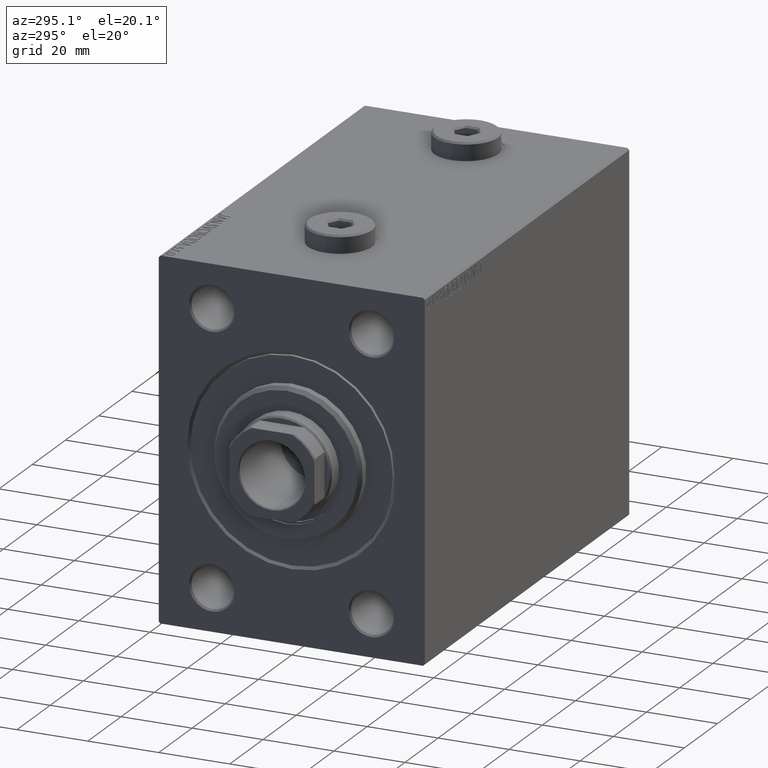
[diagram: clean part render]
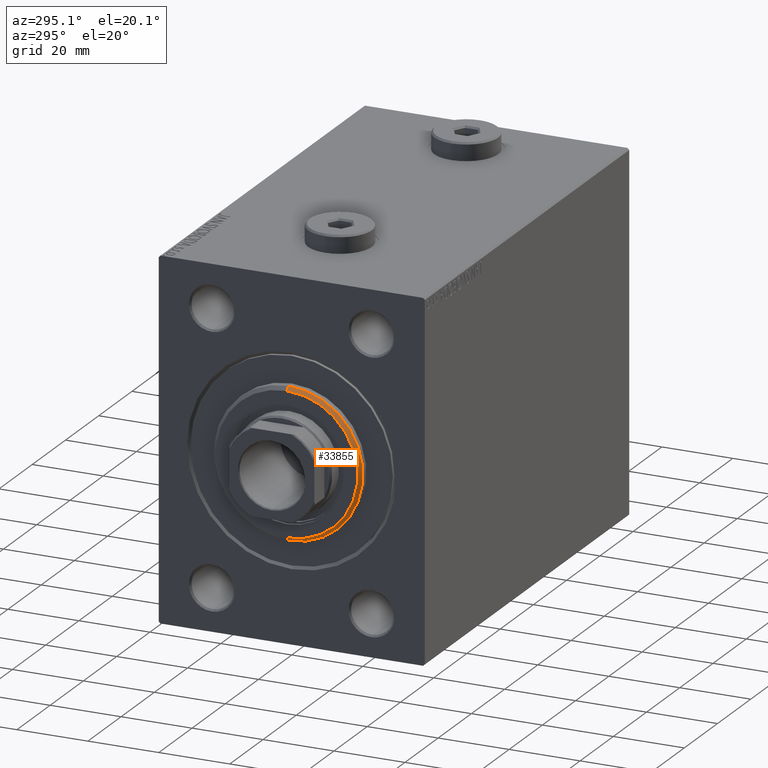
[diagram: same view with one face highlighted and labeled with its STEP entity id]
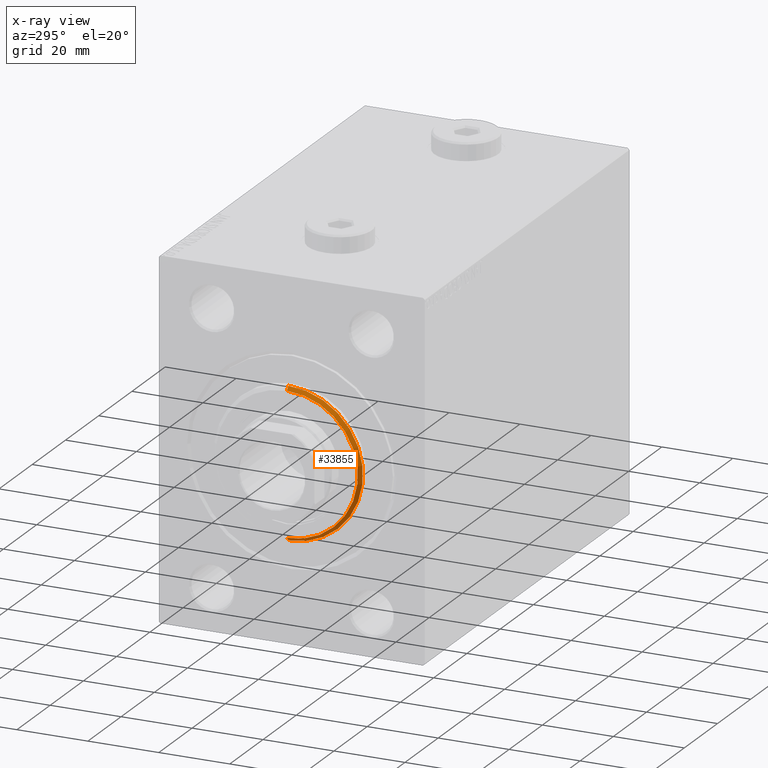
[diagram: x-ray of the same camera — body ghosted, the highlighted face saturated]
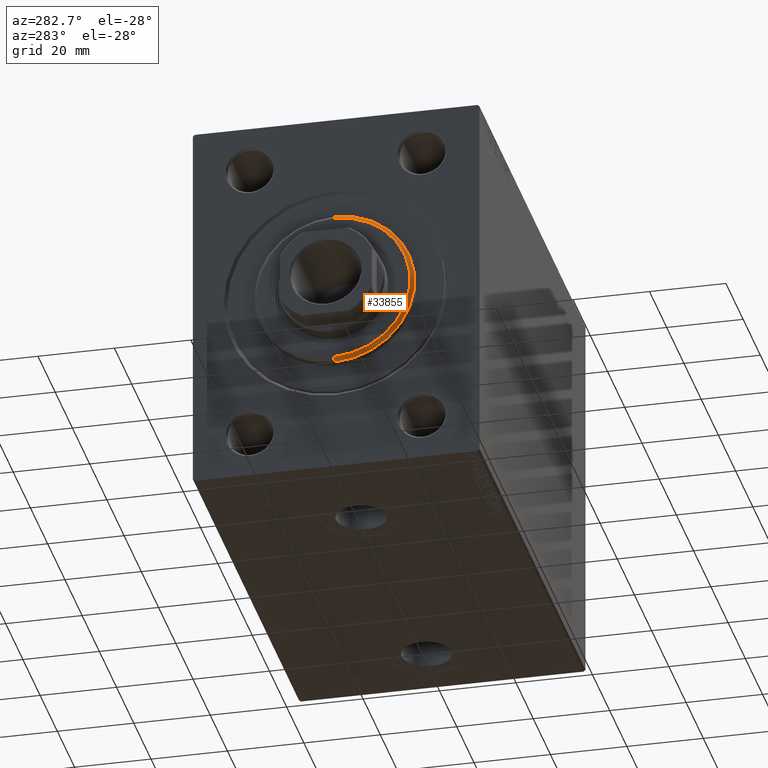
[diagram: same view with one face highlighted and labeled with its STEP entity id]
A machine part, auxiliary view. The second image highlights one B-rep face of the part: STEP entity #33855.
The next image is the same camera in x-ray: the body ghosted, the highlighted face saturated — about 0% of this face is hidden behind the body in this view.
A second angle (auxiliary view) of the same face is appended — the face is thin or edge-on in the first view.
In plain terms, the highlighted conical surface has half-angle 45 deg.
Its self-contained STEP definition (entity closure, byte-faithful):
#339 = ORIENTED_EDGE ( 'NONE', *, *, #3014, .F. ) ;
#519 = DIRECTION ( 'NONE',  ( -1.000000000000000000, 0.000000000000000000, 0.000000000000000000 ) ) ;
#1307 = CONICAL_SURFACE ( 'NONE', #44865, 19.99999999999999645, 0.7853981633974482790 ) ;
#1422 = EDGE_LOOP ( 'NONE', ( #20811, #19539, #339, #11451 ) ) ;
#2840 = DIRECTION ( 'NONE',  ( -0.7071067811865474617, 0.000000000000000000, 0.7071067811865474617 ) ) ;
#3014 = EDGE_CURVE ( 'NONE', #36748, #3835, #45668, .T. ) ;
#3835 = VERTEX_POINT ( 'NONE', #31739 ) ;
#6779 = DIRECTION ( 'NONE',  ( 0.000000000000000000, 0.000000000000000000, 1.000000000000000000 ) ) ;
#7455 = CARTESIAN_POINT ( 'NONE',  ( 3.000000000000000000, 0.000000000000000000, 0.000000000000000000 ) ) ;
#8107 = EDGE_CURVE ( 'NONE', #33024, #14720, #23678, .T. ) ;
#8523 = EDGE_CURVE ( 'NONE', #33024, #3835, #19371, .T. ) ;
#9134 = DIRECTION ( 'NONE',  ( 1.000000000000000000, -0.000000000000000000, 0.000000000000000000 ) ) ;
#9804 = DIRECTION ( 'NONE',  ( 0.000000000000000000, 0.000000000000000000, -1.000000000000000000 ) ) ;
#11451 = ORIENTED_EDGE ( 'NONE', *, *, #23598, .F. ) ;
#12656 = AXIS2_PLACEMENT_3D ( 'NONE', #41030, #9134, #9804 ) ;
#14720 = VERTEX_POINT ( 'NONE', #28885 ) ;
#19371 = LINE ( 'NONE', #19608, #25914 ) ;
#19539 = ORIENTED_EDGE ( 'NONE', *, *, #8523, .T. ) ;
#19608 = CARTESIAN_POINT ( 'NONE',  ( 3.000000000000000000, 2.449293598294706119E-15, -19.99999999999999645 ) ) ;
#20398 = CARTESIAN_POINT ( 'NONE',  ( 3.000000000000000000, 2.510525938252074087E-15, -19.99999999999999645 ) ) ;
#20811 = ORIENTED_EDGE ( 'NONE', *, *, #8107, .F. ) ;
#23598 = EDGE_CURVE ( 'NONE', #14720, #36748, #41676, .T. ) ;
#23620 = CARTESIAN_POINT ( 'NONE',  ( 3.000000000000000000, 0.000000000000000000, 19.99999999999999645 ) ) ;
#23678 = CIRCLE ( 'NONE', #12656, 19.99999999999999645 ) ;
#24549 = FACE_OUTER_BOUND ( 'NONE', #1422, .T. ) ;
#25713 = AXIS2_PLACEMENT_3D ( 'NONE', #34841, #45690, #42012 ) ;
#25914 = VECTOR ( 'NONE', #33717, 1000.000000000000114 ) ;
#28885 = CARTESIAN_POINT ( 'NONE',  ( 3.000000000000000000, 0.000000000000000000, 19.99999999999999645 ) ) ;
#31739 = CARTESIAN_POINT ( 'NONE',  ( 1.999999999999995781, 2.571758278209441661E-15, -21.00000000000000000 ) ) ;
#33024 = VERTEX_POINT ( 'NONE', #20398 ) ;
#33717 = DIRECTION ( 'NONE',  ( -0.7071067811865474617, 8.659560562354932858E-17, -0.7071067811865474617 ) ) ;
#33855 = ADVANCED_FACE ( 'NONE', ( #24549 ), #1307, .T. ) ;
#34390 = VECTOR ( 'NONE', #2840, 1000.000000000000114 ) ;
#34841 = CARTESIAN_POINT ( 'NONE',  ( 1.999999999999995781, 0.000000000000000000, 0.000000000000000000 ) ) ;
#36748 = VERTEX_POINT ( 'NONE', #42182 ) ;
#41030 = CARTESIAN_POINT ( 'NONE',  ( 3.000000000000000000, 0.000000000000000000, 0.000000000000000000 ) ) ;
#41676 = LINE ( 'NONE', #23620, #34390 ) ;
#42012 = DIRECTION ( 'NONE',  ( 0.000000000000000000, 0.000000000000000000, -1.000000000000000000 ) ) ;
#42182 = CARTESIAN_POINT ( 'NONE',  ( 1.999999999999995781, 0.000000000000000000, 21.00000000000000000 ) ) ;
#44865 = AXIS2_PLACEMENT_3D ( 'NONE', #7455, #519, #6779 ) ;
#45668 = CIRCLE ( 'NONE', #25713, 21.00000000000000000 ) ;
#45690 = DIRECTION ( 'NONE',  ( -1.000000000000000000, 0.000000000000000000, 0.000000000000000000 ) ) ;